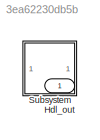
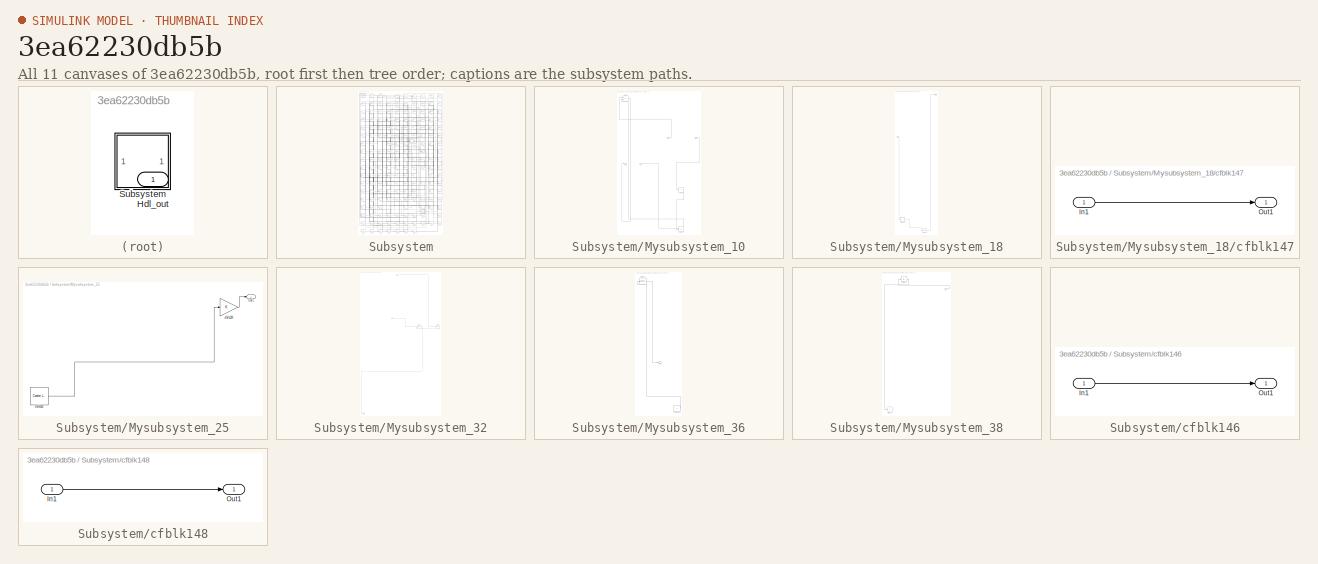
[diagram: thumbnail index - all 11 canvases of the model, root first then tree order]
MODEL slx_3ea62230db5b
KIND model
CONFIG AbsTol = auto
CONFIG EnableMultiTasking = off
CONFIG FixedStep = auto
CONFIG MaxStep = auto
CONFIG MinStep = auto
CONFIG RelTol = 1e-3
CONFIG SampleTimeConstraint = Unconstrained
CONFIG SolverName = VariableStepAuto
CONFIG StartTime = 0.0
CONFIG StopTime = 10.0
BLOCK [Outport] Hdl_out
  OutDataTypeStr = uint8
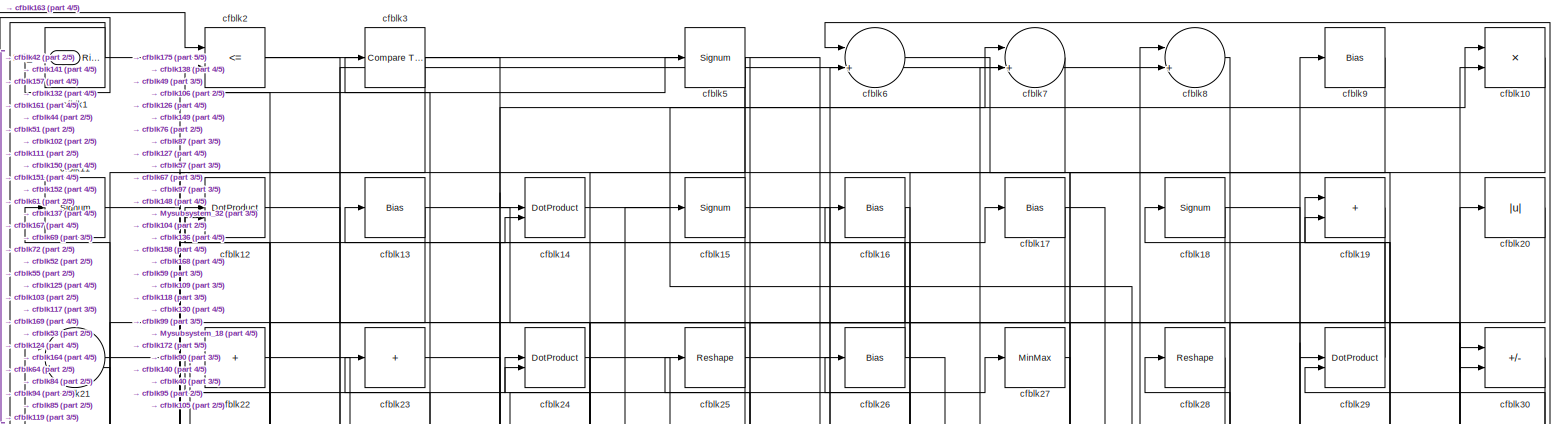
[diagram: Subsystem - part 1/5, full width, top band]
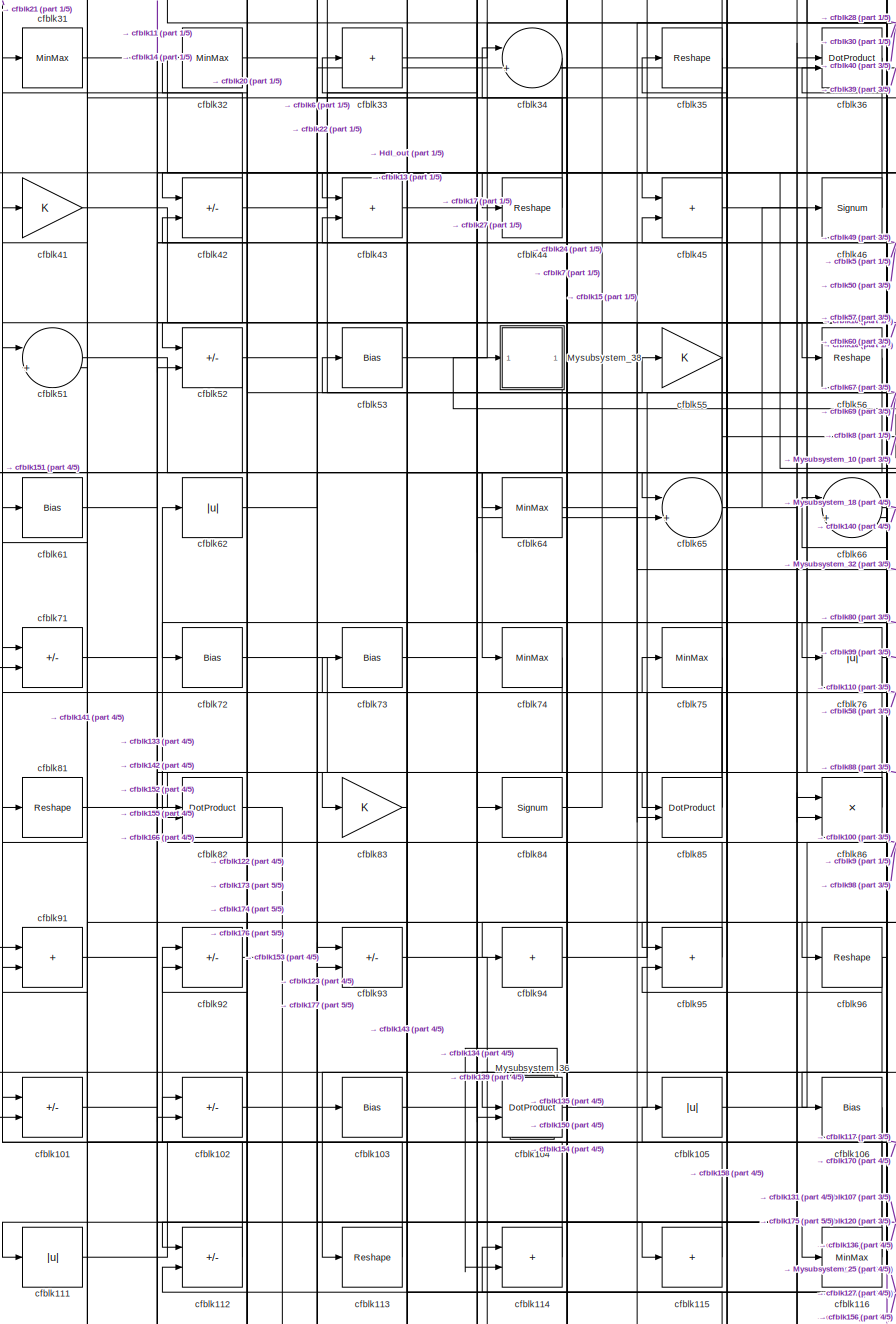
[diagram: Subsystem - part 2/5, middle left region]
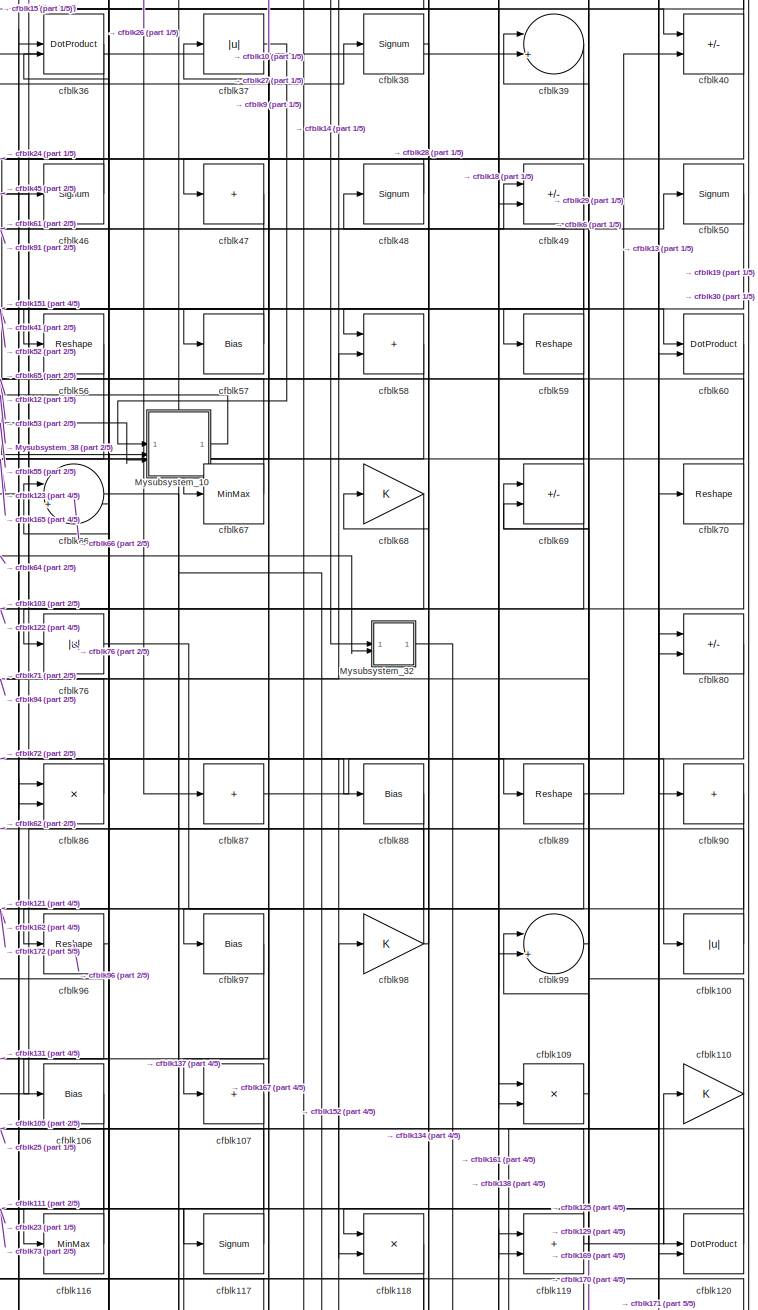
[diagram: Subsystem - part 3/5, middle right region]
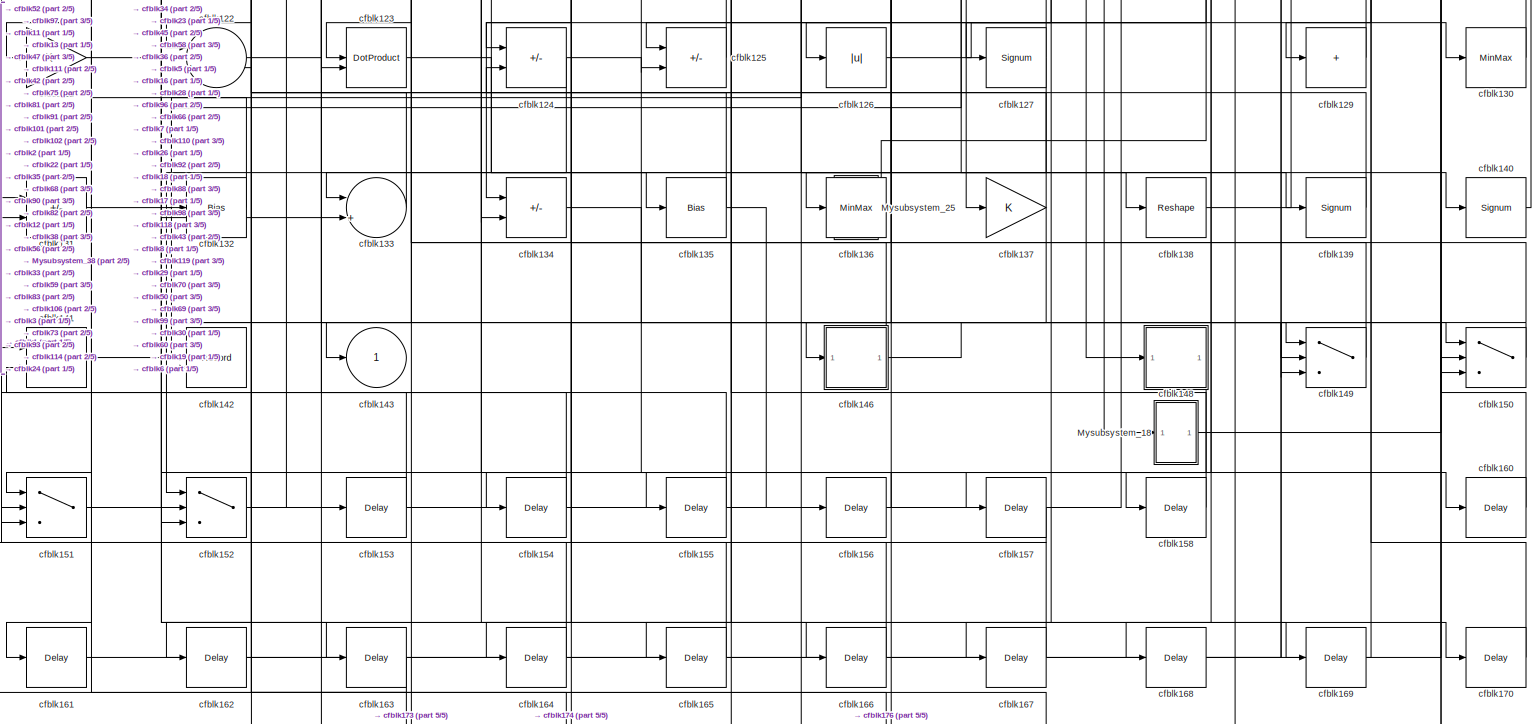
[diagram: Subsystem - part 4/5, full width, bottom band]
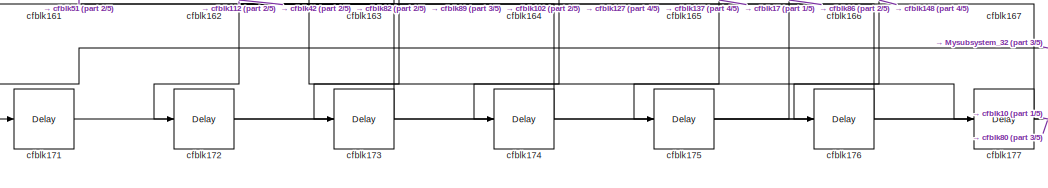
[diagram: Subsystem - part 5/5, bottom center region]
BLOCK [SubSystem] Subsystem
BLOCK [Outport] Subsystem/Hdl_out
  OutDataTypeStr = uint8
  Port = 2
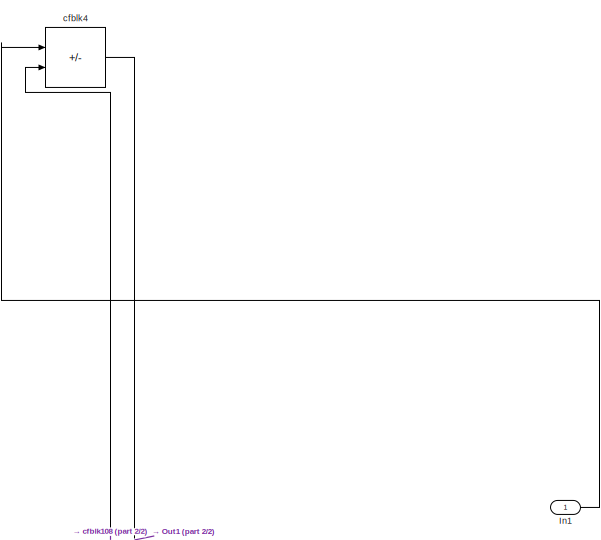
[diagram: Subsystem/Mysubsystem_10 - part 1/2, top center region]
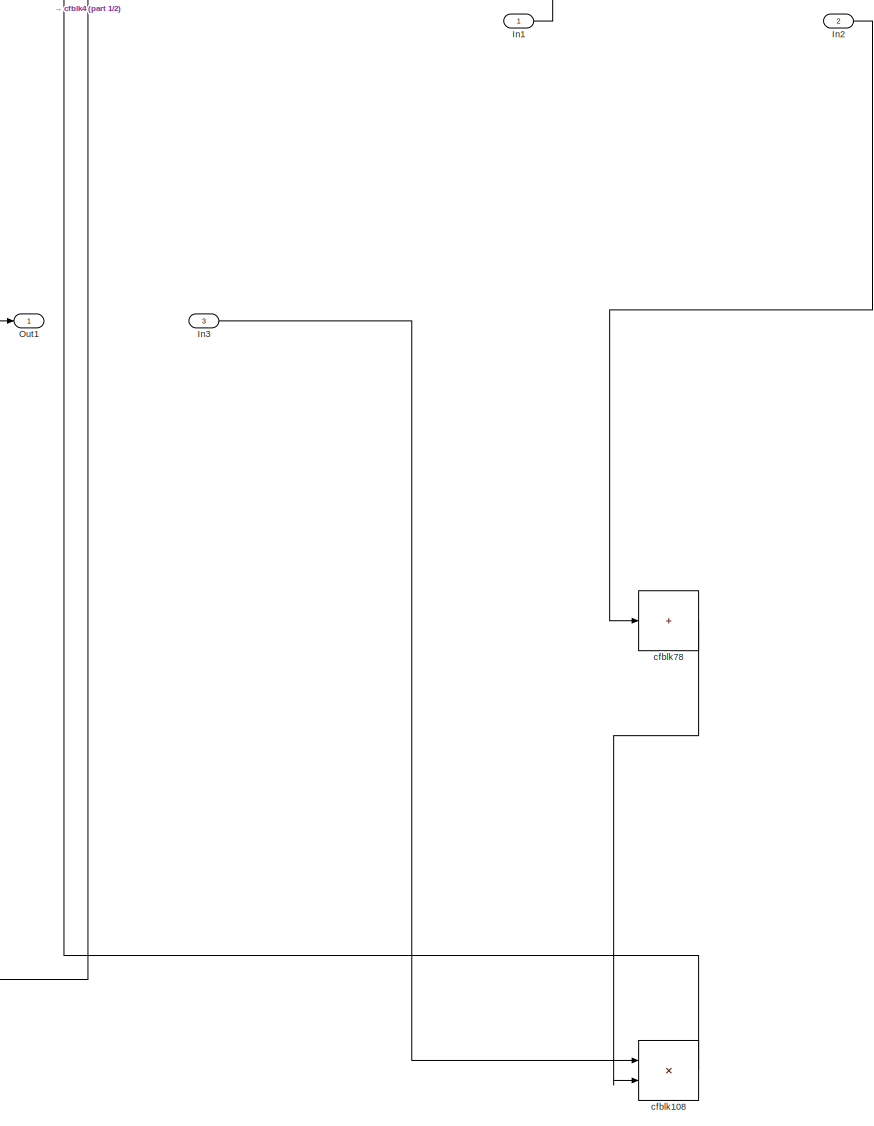
[diagram: Subsystem/Mysubsystem_10 - part 2/2, full width, middle band]
BLOCK [SubSystem] Subsystem/Mysubsystem_10
  RTWFcnName = Mysubsystem_10
  RTWFcnNameOpts = User specified
  RTWFileNameOpts = Use function name
  RTWSystemCode = Reusable function
  TreatAsAtomicUnit = on
BLOCK [Inport] Subsystem/Mysubsystem_10/In1
BLOCK [Inport] Subsystem/Mysubsystem_10/In2
  Port = 2
BLOCK [Inport] Subsystem/Mysubsystem_10/In3
  Port = 3
BLOCK [Outport] Subsystem/Mysubsystem_10/Out1
BLOCK [Product] Subsystem/Mysubsystem_10/cfblk108
  Inputs = */
  RndMeth = Zero
  SaturateOnIntegerOverflow = on
BLOCK [Sum] Subsystem/Mysubsystem_10/cfblk4
  IconShape = rectangular
  Inputs = +-
BLOCK [Sum] Subsystem/Mysubsystem_10/cfblk78
  IconShape = rectangular
  Inputs = +
BLOCK [SubSystem] Subsystem/Mysubsystem_18
  RTWFcnName = Mysubsystem_18
  RTWFcnNameOpts = User specified
  RTWFileNameOpts = Use function name
  RTWSystemCode = Reusable function
  TreatAsAtomicUnit = on
BLOCK [Inport] Subsystem/Mysubsystem_18/In1
BLOCK [Outport] Subsystem/Mysubsystem_18/Out1
BLOCK [SubSystem] Subsystem/Mysubsystem_18/cfblk147
  LibrarySourceBlock = hdlsllib/Ports &\nSubsystems/Subsystem
BLOCK [Inport] Subsystem/Mysubsystem_18/cfblk147/In1
BLOCK [Outport] Subsystem/Mysubsystem_18/cfblk147/Out1
BLOCK [Delay] Subsystem/Mysubsystem_18/cfblk159
  InputPortMap = u0
  SampleTime = 1
BLOCK [SubSystem] Subsystem/Mysubsystem_25
  RTWFcnName = Mysubsystem_25
  RTWFcnNameOpts = User specified
  RTWFileNameOpts = Use function name
  RTWSystemCode = Reusable function
  TreatAsAtomicUnit = on
BLOCK [Outport] Subsystem/Mysubsystem_25/Out1
BLOCK [Gain] Subsystem/Mysubsystem_25/cfblk128
BLOCK [Reference] Subsystem/Mysubsystem_25/cfblk144  REF=hdlsllib/Sources/Counter
Limited
  SourceBlock = hdlsllib/Sources/Counter\nLimited
  SourceType = Counter Limited
BLOCK [SubSystem] Subsystem/Mysubsystem_32
  RTWFcnName = Mysubsystem_32
  RTWFcnNameOpts = User specified
  RTWFileNameOpts = Use function name
  RTWSystemCode = Reusable function
  TreatAsAtomicUnit = on
BLOCK [Inport] Subsystem/Mysubsystem_32/In1
BLOCK [Inport] Subsystem/Mysubsystem_32/In2
  Port = 2
BLOCK [Outport] Subsystem/Mysubsystem_32/Out1
BLOCK [DotProduct] Subsystem/Mysubsystem_32/cfblk77
  OutDataTypeStr = Inherit: Inherit via internal rule
BLOCK [Bias] Subsystem/Mysubsystem_32/cfblk79
  Bias = 0.0
  SaturateOnIntegerOverflow = off
BLOCK [SubSystem] Subsystem/Mysubsystem_36
  RTWFcnName = Mysubsystem_36
  RTWFcnNameOpts = User specified
  RTWFileNameOpts = Use function name
  RTWSystemCode = Reusable function
  TreatAsAtomicUnit = on
BLOCK [Outport] Subsystem/Mysubsystem_36/Out1
BLOCK [Constant] Subsystem/Mysubsystem_36/cfblk145
  SampleTime = -1
BLOCK [MinMax] Subsystem/Mysubsystem_36/cfblk63
BLOCK [SubSystem] Subsystem/Mysubsystem_38
  RTWFcnName = Mysubsystem_38
  RTWFcnNameOpts = User specified
  RTWFileNameOpts = Use function name
  RTWSystemCode = Reusable function
  TreatAsAtomicUnit = on
BLOCK [Inport] Subsystem/Mysubsystem_38/In1
BLOCK [Outport] Subsystem/Mysubsystem_38/cfblk143
  VectorParamsAs1DForOutWhenUnconnected = off
BLOCK [Abs] Subsystem/Mysubsystem_38/cfblk54
  SaturateOnIntegerOverflow = off
BLOCK [Reference] Subsystem/cfblk1  REF=hdlsllib/Logic and Bit
Operations/Detect Rise
Positive
  SourceBlock = hdlsllib/Logic and Bit\nOperations/Detect Rise\nPositive
  SourceType = Detect Rise Positive
BLOCK [Product] Subsystem/cfblk10
  Inputs = */
  OutDataTypeStr = uint8
  RndMeth = Zero
  SaturateOnIntegerOverflow = on
BLOCK [Abs] Subsystem/cfblk100
  OutDataTypeStr = uint8
  SaturateOnIntegerOverflow = off
BLOCK [Sum] Subsystem/cfblk101
  IconShape = rectangular
  Inputs = +-
  OutDataTypeStr = uint8
BLOCK [Sum] Subsystem/cfblk102
  IconShape = rectangular
  Inputs = +-
  OutDataTypeStr = uint8
BLOCK [Bias] Subsystem/cfblk103
  Bias = 0.0
  SaturateOnIntegerOverflow = off
BLOCK [DotProduct] Subsystem/cfblk104
  OutDataTypeStr = uint8
BLOCK [Abs] Subsystem/cfblk105
  OutDataTypeStr = uint8
  SaturateOnIntegerOverflow = off
BLOCK [Bias] Subsystem/cfblk106
  Bias = 0.0
  SaturateOnIntegerOverflow = off
BLOCK [Sum] Subsystem/cfblk107
  IconShape = rectangular
  Inputs = +
  OutDataTypeStr = uint8
BLOCK [Product] Subsystem/cfblk109
  Inputs = */
  OutDataTypeStr = uint8
  RndMeth = Zero
  SaturateOnIntegerOverflow = on
BLOCK [Signum] Subsystem/cfblk11
BLOCK [Gain] Subsystem/cfblk110
  OutDataTypeStr = uint8
BLOCK [Abs] Subsystem/cfblk111
  OutDataTypeStr = uint8
  SaturateOnIntegerOverflow = off
BLOCK [Sum] Subsystem/cfblk112
  IconShape = rectangular
  Inputs = +-
  OutDataTypeStr = uint8
BLOCK [Reshape] Subsystem/cfblk113
BLOCK [Sum] Subsystem/cfblk114
  IconShape = rectangular
  OutDataTypeStr = uint8
BLOCK [Sum] Subsystem/cfblk115
  IconShape = rectangular
  Inputs = +
  OutDataTypeStr = uint8
BLOCK [MinMax] Subsystem/cfblk116
  OutDataTypeStr = uint8
BLOCK [Signum] Subsystem/cfblk117
BLOCK [Product] Subsystem/cfblk118
  Inputs = */
  OutDataTypeStr = uint8
  RndMeth = Zero
  SaturateOnIntegerOverflow = on
BLOCK [Sum] Subsystem/cfblk119
  IconShape = rectangular
  OutDataTypeStr = uint8
BLOCK [DotProduct] Subsystem/cfblk12
  OutDataTypeStr = uint8
BLOCK [DotProduct] Subsystem/cfblk120
  OutDataTypeStr = uint8
BLOCK [Gain] Subsystem/cfblk121
  OutDataTypeStr = uint8
BLOCK [Sum] Subsystem/cfblk122
  Inputs = |++
  OutDataTypeStr = uint8
BLOCK [DotProduct] Subsystem/cfblk123
  OutDataTypeStr = uint8
BLOCK [Sum] Subsystem/cfblk124
  IconShape = rectangular
  Inputs = +-
  OutDataTypeStr = uint8
BLOCK [Sum] Subsystem/cfblk125
  IconShape = rectangular
  Inputs = +-
  OutDataTypeStr = uint8
BLOCK [Abs] Subsystem/cfblk126
  OutDataTypeStr = uint8
  SaturateOnIntegerOverflow = off
BLOCK [Signum] Subsystem/cfblk127
BLOCK [Sum] Subsystem/cfblk129
  IconShape = rectangular
  Inputs = +
  OutDataTypeStr = uint8
BLOCK [Bias] Subsystem/cfblk13
  Bias = 0.0
  SaturateOnIntegerOverflow = off
BLOCK [MinMax] Subsystem/cfblk130
  OutDataTypeStr = uint8
BLOCK [Sum] Subsystem/cfblk131
  IconShape = rectangular
  Inputs = +-
  OutDataTypeStr = uint8
BLOCK [Bias] Subsystem/cfblk132
  Bias = 0.0
  SaturateOnIntegerOverflow = off
BLOCK [Sum] Subsystem/cfblk133
  Inputs = |++
  OutDataTypeStr = uint8
BLOCK [Sum] Subsystem/cfblk134
  IconShape = rectangular
  Inputs = +-
  OutDataTypeStr = uint8
BLOCK [Bias] Subsystem/cfblk135
  Bias = 0.0
  SaturateOnIntegerOverflow = off
BLOCK [MinMax] Subsystem/cfblk136
  OutDataTypeStr = uint8
BLOCK [Gain] Subsystem/cfblk137
  OutDataTypeStr = uint8
BLOCK [Reshape] Subsystem/cfblk138
BLOCK [Signum] Subsystem/cfblk139
BLOCK [DotProduct] Subsystem/cfblk14
  OutDataTypeStr = uint8
BLOCK [Signum] Subsystem/cfblk140
BLOCK [Sum] Subsystem/cfblk141
  IconShape = rectangular
  OutDataTypeStr = uint8
BLOCK [Record] Subsystem/cfblk142
  CompatibilityTag = XY
  FileSettingsInternal = {"entries":[{"content":{"excelSettings":{"content":{},"type":"Streamout.ExcelSettings"}},"type":"Streamout.FileSettingStorage","uuid":""}],"packageUris":["http:\/\/schema.mathworks.com\/mf0\/streamout_blocks\/R2020a"],"version":"1.0"}
  Layout = [1 1]
  SignalsInternal = {"entries":[{"content":{"signals":[{"content":{"blockPath":[],"dimensions":[1],"domain":"","lineColor":"#a2142f","plots":[1],"port":1,"signalID":20133,"signalName":"cfblk150"},"type":"RecordBlkView.Signal","uuid":""},{"content":{"blockPath":[],"dimensions":[1],"domain":"","lineColor":"#139fff","plots":[1],"port":2,"signalID":20136,"signalName":"cfblk75"},"type":"RecordBlkView.Signal","uuid":""}]},...<+143ch>
  VisualizationBindings = {"xyplotplugin":{"info":[{"series":[{"bindingParametersList":[{"parameter":"X-Axis","signalID":20133,"signalName":"cfblk150"},{"parameter":"Y-Axis","signalID":20136,"signalName":"cfblk75"}],"seriesID":42833}],"subplotID":1}]}}
  st = -1
BLOCK [Outport] Subsystem/cfblk143
  OutDataTypeStr = uint8
  VectorParamsAs1DForOutWhenUnconnected = off
BLOCK [SubSystem] Subsystem/cfblk146
  LibrarySourceBlock = hdlsllib/Ports &\nSubsystems/Subsystem
BLOCK [Inport] Subsystem/cfblk146/In1
BLOCK [Outport] Subsystem/cfblk146/Out1
BLOCK [SubSystem] Subsystem/cfblk148
  LibrarySourceBlock = hdlsllib/Ports &\nSubsystems/Subsystem
BLOCK [Inport] Subsystem/cfblk148/In1
BLOCK [Outport] Subsystem/cfblk148/Out1
BLOCK [Switch] Subsystem/cfblk149
  InputSameDT = off
  OutDataTypeStr = uint8
  SaturateOnIntegerOverflow = off
BLOCK [Signum] Subsystem/cfblk15
BLOCK [Switch] Subsystem/cfblk150
  InputSameDT = off
  OutDataTypeStr = uint8
  SaturateOnIntegerOverflow = off
BLOCK [Switch] Subsystem/cfblk151
  InputSameDT = off
  OutDataTypeStr = uint8
  SaturateOnIntegerOverflow = off
BLOCK [Switch] Subsystem/cfblk152
  InputSameDT = off
  OutDataTypeStr = uint8
  SaturateOnIntegerOverflow = off
BLOCK [Delay] Subsystem/cfblk153
  InputPortMap = u0
  SampleTime = 1
BLOCK [Delay] Subsystem/cfblk154
  InputPortMap = u0
  SampleTime = 1
BLOCK [Delay] Subsystem/cfblk155
  InputPortMap = u0
  SampleTime = 1
BLOCK [Delay] Subsystem/cfblk156
  InputPortMap = u0
  SampleTime = 1
BLOCK [Delay] Subsystem/cfblk157
  InputPortMap = u0
  SampleTime = 1
BLOCK [Delay] Subsystem/cfblk158
  InputPortMap = u0
  SampleTime = 1
BLOCK [Bias] Subsystem/cfblk16
  Bias = 0.0
  SaturateOnIntegerOverflow = off
BLOCK [Delay] Subsystem/cfblk160
  InputPortMap = u0
  SampleTime = 1
BLOCK [Delay] Subsystem/cfblk161
  InputPortMap = u0
  SampleTime = 1
BLOCK [Delay] Subsystem/cfblk162
  InputPortMap = u0
  SampleTime = 1
BLOCK [Delay] Subsystem/cfblk163
  InputPortMap = u0
  SampleTime = 1
BLOCK [Delay] Subsystem/cfblk164
  InputPortMap = u0
  SampleTime = 1
BLOCK [Delay] Subsystem/cfblk165
  InputPortMap = u0
  SampleTime = 1
BLOCK [Delay] Subsystem/cfblk166
  InputPortMap = u0
  SampleTime = 1
BLOCK [Delay] Subsystem/cfblk167
  InputPortMap = u0
  SampleTime = 1
BLOCK [Delay] Subsystem/cfblk168
  InputPortMap = u0
  SampleTime = 1
BLOCK [Delay] Subsystem/cfblk169
  InputPortMap = u0
  SampleTime = 1
BLOCK [Bias] Subsystem/cfblk17
  Bias = 0.0
  SaturateOnIntegerOverflow = off
BLOCK [Delay] Subsystem/cfblk170
  InputPortMap = u0
  SampleTime = 1
BLOCK [Delay] Subsystem/cfblk171
  InputPortMap = u0
  SampleTime = 1
BLOCK [Delay] Subsystem/cfblk172
  InputPortMap = u0
  SampleTime = 1
BLOCK [Delay] Subsystem/cfblk173
  InputPortMap = u0
  SampleTime = 1
BLOCK [Delay] Subsystem/cfblk174
  InputPortMap = u0
  SampleTime = 1
BLOCK [Delay] Subsystem/cfblk175
  InputPortMap = u0
  SampleTime = 1
BLOCK [Delay] Subsystem/cfblk176
  InputPortMap = u0
  SampleTime = 1
BLOCK [Delay] Subsystem/cfblk177
  InputPortMap = u0
  SampleTime = 1
BLOCK [Signum] Subsystem/cfblk18
BLOCK [Sum] Subsystem/cfblk19
  IconShape = rectangular
  OutDataTypeStr = uint8
BLOCK [RelationalOperator] Subsystem/cfblk2
  InputSameDT = off
  Operator = <=
  OutDataTypeStr = boolean
BLOCK [Abs] Subsystem/cfblk20
  OutDataTypeStr = uint8
  SaturateOnIntegerOverflow = off
BLOCK [Sum] Subsystem/cfblk21
  Inputs = |++
  OutDataTypeStr = uint8
BLOCK [Sum] Subsystem/cfblk22
  IconShape = rectangular
  Inputs = +
  OutDataTypeStr = uint8
BLOCK [Sum] Subsystem/cfblk23
  IconShape = rectangular
  Inputs = +
  OutDataTypeStr = uint8
BLOCK [DotProduct] Subsystem/cfblk24
  OutDataTypeStr = uint8
BLOCK [Reshape] Subsystem/cfblk25
BLOCK [Bias] Subsystem/cfblk26
  Bias = 0.0
  SaturateOnIntegerOverflow = off
BLOCK [MinMax] Subsystem/cfblk27
  OutDataTypeStr = uint8
BLOCK [Reshape] Subsystem/cfblk28
BLOCK [DotProduct] Subsystem/cfblk29
  OutDataTypeStr = uint8
BLOCK [Reference] Subsystem/cfblk3  REF=hdlsllib/Logic and Bit
Operations/Compare
To Constant
  SourceBlock = hdlsllib/Logic and Bit\nOperations/Compare\nTo Constant
  SourceType = Compare To Constant
BLOCK [Sum] Subsystem/cfblk30
  IconShape = rectangular
  Inputs = +-
  OutDataTypeStr = uint8
BLOCK [MinMax] Subsystem/cfblk31
  OutDataTypeStr = uint8
BLOCK [MinMax] Subsystem/cfblk32
  OutDataTypeStr = uint8
BLOCK [Sum] Subsystem/cfblk33
  IconShape = rectangular
  Inputs = +
  OutDataTypeStr = uint8
BLOCK [Sum] Subsystem/cfblk34
  Inputs = |++
  OutDataTypeStr = uint8
BLOCK [Reshape] Subsystem/cfblk35
BLOCK [DotProduct] Subsystem/cfblk36
  OutDataTypeStr = uint8
BLOCK [Abs] Subsystem/cfblk37
  OutDataTypeStr = uint8
  SaturateOnIntegerOverflow = off
BLOCK [Signum] Subsystem/cfblk38
BLOCK [Sum] Subsystem/cfblk39
  Inputs = |++
  OutDataTypeStr = uint8
BLOCK [Sum] Subsystem/cfblk40
  IconShape = rectangular
  Inputs = +-
  OutDataTypeStr = uint8
BLOCK [Gain] Subsystem/cfblk41
  OutDataTypeStr = uint8
BLOCK [Sum] Subsystem/cfblk42
  IconShape = rectangular
  Inputs = +-
  OutDataTypeStr = uint8
BLOCK [Sum] Subsystem/cfblk43
  IconShape = rectangular
  OutDataTypeStr = uint8
BLOCK [Reshape] Subsystem/cfblk44
BLOCK [Sum] Subsystem/cfblk45
  IconShape = rectangular
  OutDataTypeStr = uint8
BLOCK [Signum] Subsystem/cfblk46
BLOCK [Sum] Subsystem/cfblk47
  IconShape = rectangular
  Inputs = +
  OutDataTypeStr = uint8
BLOCK [Signum] Subsystem/cfblk48
BLOCK [Sum] Subsystem/cfblk49
  IconShape = rectangular
  Inputs = +-
  OutDataTypeStr = uint8
BLOCK [Signum] Subsystem/cfblk5
BLOCK [Signum] Subsystem/cfblk50
BLOCK [Sum] Subsystem/cfblk51
  Inputs = |++
  OutDataTypeStr = uint8
BLOCK [Sum] Subsystem/cfblk52
  IconShape = rectangular
  Inputs = +-
  OutDataTypeStr = uint8
BLOCK [Bias] Subsystem/cfblk53
  Bias = 0.0
  SaturateOnIntegerOverflow = off
BLOCK [Gain] Subsystem/cfblk55
  OutDataTypeStr = uint8
BLOCK [Reshape] Subsystem/cfblk56
BLOCK [Bias] Subsystem/cfblk57
  Bias = 0.0
  SaturateOnIntegerOverflow = off
BLOCK [Sum] Subsystem/cfblk58
  IconShape = rectangular
  OutDataTypeStr = uint8
BLOCK [Reshape] Subsystem/cfblk59
BLOCK [Sum] Subsystem/cfblk6
  Inputs = |++
  OutDataTypeStr = uint8
BLOCK [DotProduct] Subsystem/cfblk60
  OutDataTypeStr = uint8
BLOCK [Bias] Subsystem/cfblk61
  Bias = 0.0
  SaturateOnIntegerOverflow = off
BLOCK [Abs] Subsystem/cfblk62
  OutDataTypeStr = uint8
  SaturateOnIntegerOverflow = off
BLOCK [MinMax] Subsystem/cfblk64
  OutDataTypeStr = uint8
BLOCK [Sum] Subsystem/cfblk65
  Inputs = |++
  OutDataTypeStr = uint8
BLOCK [Sum] Subsystem/cfblk66
  Inputs = |++
  OutDataTypeStr = uint8
BLOCK [MinMax] Subsystem/cfblk67
  OutDataTypeStr = uint8
BLOCK [Gain] Subsystem/cfblk68
  OutDataTypeStr = uint8
BLOCK [Sum] Subsystem/cfblk69
  IconShape = rectangular
  Inputs = +-
  OutDataTypeStr = uint8
BLOCK [Sum] Subsystem/cfblk7
  Inputs = |++
  OutDataTypeStr = uint8
BLOCK [Reshape] Subsystem/cfblk70
BLOCK [Sum] Subsystem/cfblk71
  IconShape = rectangular
  Inputs = +-
  OutDataTypeStr = uint8
BLOCK [Bias] Subsystem/cfblk72
  Bias = 0.0
  SaturateOnIntegerOverflow = off
BLOCK [Bias] Subsystem/cfblk73
  Bias = 0.0
  SaturateOnIntegerOverflow = off
BLOCK [MinMax] Subsystem/cfblk74
  OutDataTypeStr = uint8
BLOCK [MinMax] Subsystem/cfblk75
  OutDataTypeStr = uint8
BLOCK [Abs] Subsystem/cfblk76
  OutDataTypeStr = uint8
  SaturateOnIntegerOverflow = off
BLOCK [Sum] Subsystem/cfblk8
  Inputs = |++
  OutDataTypeStr = uint8
BLOCK [Sum] Subsystem/cfblk80
  IconShape = rectangular
  Inputs = +-
  OutDataTypeStr = uint8
BLOCK [Reshape] Subsystem/cfblk81
BLOCK [DotProduct] Subsystem/cfblk82
  OutDataTypeStr = uint8
BLOCK [Gain] Subsystem/cfblk83
  OutDataTypeStr = uint8
BLOCK [Signum] Subsystem/cfblk84
BLOCK [DotProduct] Subsystem/cfblk85
  OutDataTypeStr = uint8
BLOCK [Product] Subsystem/cfblk86
  Inputs = */
  OutDataTypeStr = uint8
  RndMeth = Zero
  SaturateOnIntegerOverflow = on
BLOCK [Sum] Subsystem/cfblk87
  IconShape = rectangular
  Inputs = +
  OutDataTypeStr = uint8
BLOCK [Bias] Subsystem/cfblk88
  Bias = 0.0
  SaturateOnIntegerOverflow = off
BLOCK [Reshape] Subsystem/cfblk89
BLOCK [Bias] Subsystem/cfblk9
  Bias = 0.0
  SaturateOnIntegerOverflow = off
BLOCK [Sum] Subsystem/cfblk90
  IconShape = rectangular
  Inputs = +
  OutDataTypeStr = uint8
BLOCK [Sum] Subsystem/cfblk91
  IconShape = rectangular
  OutDataTypeStr = uint8
BLOCK [Sum] Subsystem/cfblk92
  IconShape = rectangular
  Inputs = +-
  OutDataTypeStr = uint8
BLOCK [Sum] Subsystem/cfblk93
  IconShape = rectangular
  Inputs = +-
  OutDataTypeStr = uint8
BLOCK [Sum] Subsystem/cfblk94
  IconShape = rectangular
  Inputs = +
  OutDataTypeStr = uint8
BLOCK [Sum] Subsystem/cfblk95
  IconShape = rectangular
  OutDataTypeStr = uint8
BLOCK [Reshape] Subsystem/cfblk96
BLOCK [Bias] Subsystem/cfblk97
  Bias = 0.0
  SaturateOnIntegerOverflow = off
BLOCK [Gain] Subsystem/cfblk98
  OutDataTypeStr = uint8
BLOCK [Sum] Subsystem/cfblk99
  Inputs = |++
  OutDataTypeStr = uint8
LINE Subsystem/Mysubsystem_10/In1:1 -> Subsystem/Mysubsystem_10/cfblk4:1
LINE Subsystem/Mysubsystem_10/In2:1 -> Subsystem/Mysubsystem_10/cfblk78:1
LINE Subsystem/Mysubsystem_10/In3:1 -> Subsystem/Mysubsystem_10/cfblk108:1
LINE Subsystem/Mysubsystem_10/cfblk108:1 -> Subsystem/Mysubsystem_10/cfblk4:2
LINE Subsystem/Mysubsystem_10/cfblk4:1 -> Subsystem/Mysubsystem_10/Out1:1
LINE Subsystem/Mysubsystem_10/cfblk78:1 -> Subsystem/Mysubsystem_10/cfblk108:2
LINE Subsystem/Mysubsystem_10:1 -> Subsystem/Mysubsystem_38:1
LINE Subsystem/Mysubsystem_18/In1:1 -> Subsystem/Mysubsystem_18/cfblk147:1
LINE Subsystem/Mysubsystem_18/cfblk147/In1:1 -> Subsystem/Mysubsystem_18/cfblk147/Out1:1
LINE Subsystem/Mysubsystem_18/cfblk147:1 -> Subsystem/Mysubsystem_18/cfblk159:1
LINE Subsystem/Mysubsystem_18/cfblk159:1 -> Subsystem/Mysubsystem_18/Out1:1
LINE Subsystem/Mysubsystem_18:1 -> Subsystem/cfblk30:1
LINE Subsystem/Mysubsystem_25/cfblk128:1 -> Subsystem/Mysubsystem_25/Out1:1
LINE Subsystem/Mysubsystem_25/cfblk144:1 -> Subsystem/Mysubsystem_25/cfblk128:1
NET Subsystem/Mysubsystem_25:1 -> Subsystem/cfblk125:1, Subsystem/cfblk43:2
LINE Subsystem/Mysubsystem_32/In1:1 -> Subsystem/Mysubsystem_32/cfblk79:1
LINE Subsystem/Mysubsystem_32/In2:1 -> Subsystem/Mysubsystem_32/cfblk77:1
LINE Subsystem/Mysubsystem_32/cfblk77:1 -> Subsystem/Mysubsystem_32/Out1:1
LINE Subsystem/Mysubsystem_32/cfblk79:1 -> Subsystem/Mysubsystem_32/cfblk77:2
LINE Subsystem/Mysubsystem_32:1 -> Subsystem/cfblk171:1
LINE Subsystem/Mysubsystem_36/cfblk145:1 -> Subsystem/Mysubsystem_36/cfblk63:1
LINE Subsystem/Mysubsystem_36/cfblk63:1 -> Subsystem/Mysubsystem_36/Out1:1
LINE Subsystem/Mysubsystem_36:1 -> Subsystem/cfblk114:2
LINE Subsystem/Mysubsystem_38/In1:1 -> Subsystem/Mysubsystem_38/cfblk54:1
LINE Subsystem/Mysubsystem_38/cfblk54:1 -> Subsystem/Mysubsystem_38/cfblk143:1
LINE Subsystem/Mysubsystem_38:1 -> Subsystem/cfblk143:1
LINE Subsystem/cfblk100:1 -> Subsystem/cfblk62:1
LINE Subsystem/cfblk101:1 -> Subsystem/cfblk155:1
NET Subsystem/cfblk102:1 -> Subsystem/cfblk113:1, Subsystem/cfblk177:1
LINE Subsystem/cfblk103:1 -> Subsystem/cfblk14:1
LINE Subsystem/cfblk104:1 -> Subsystem/cfblk8:1
LINE Subsystem/cfblk105:1 -> Subsystem/cfblk9:1
LINE Subsystem/cfblk106:1 -> Subsystem/cfblk134:2
LINE Subsystem/cfblk107:1 -> Subsystem/cfblk111:1
LINE Subsystem/cfblk109:1 -> Subsystem/cfblk39:1
NET Subsystem/cfblk10:1 -> Subsystem/cfblk67:1, Subsystem/cfblk76:1
NET Subsystem/cfblk110:1 -> Subsystem/cfblk137:1, Subsystem/cfblk71:1
NET Subsystem/cfblk111:1 -> Subsystem/cfblk14:2, Subsystem/cfblk170:1, Subsystem/cfblk20:1
LINE Subsystem/cfblk112:1 -> Subsystem/cfblk61:1
LINE Subsystem/cfblk113:1 -> Subsystem/cfblk31:1
LINE Subsystem/cfblk114:1 -> Subsystem/cfblk41:1
LINE Subsystem/cfblk115:1 -> Subsystem/cfblk92:1
LINE Subsystem/cfblk116:1 -> Subsystem/cfblk81:1
LINE Subsystem/cfblk117:1 -> Subsystem/cfblk105:1
LINE Subsystem/cfblk118:1 -> Subsystem/cfblk134:1
NET Subsystem/cfblk119:1 -> Subsystem/cfblk110:1, Subsystem/cfblk25:1
NET Subsystem/cfblk11:1 -> Subsystem/cfblk102:2, Subsystem/cfblk150:3
LINE Subsystem/cfblk120:1 -> Subsystem/cfblk69:1
LINE Subsystem/cfblk121:1 -> Subsystem/cfblk163:1
LINE Subsystem/cfblk122:1 -> Subsystem/cfblk38:1
LINE Subsystem/cfblk123:1 -> Subsystem/cfblk135:1
NET Subsystem/cfblk124:1 -> Subsystem/cfblk149:1, Subsystem/cfblk149:3, Subsystem/cfblk152:1
LINE Subsystem/cfblk125:1 -> Subsystem/cfblk23:1
LINE Subsystem/cfblk126:1 -> Subsystem/cfblk130:1
NET Subsystem/cfblk127:1 -> Subsystem/cfblk173:1, Subsystem/cfblk26:1, Subsystem/cfblk92:2
LINE Subsystem/cfblk129:1 -> Subsystem/cfblk34:2
LINE Subsystem/cfblk12:1 -> Subsystem/cfblk150:1
LINE Subsystem/cfblk130:1 -> Subsystem/cfblk19:1
NET Subsystem/cfblk131:1 -> Subsystem/cfblk132:1, Subsystem/cfblk36:1
LINE Subsystem/cfblk132:1 -> Subsystem/cfblk11:1
LINE Subsystem/cfblk133:1 -> Subsystem/cfblk101:1
LINE Subsystem/cfblk134:1 -> Subsystem/cfblk160:1
NET Subsystem/cfblk135:1 -> Subsystem/cfblk156:1, Subsystem/cfblk34:1
LINE Subsystem/cfblk136:1 -> Subsystem/cfblk66:1
NET Subsystem/cfblk137:1 -> Subsystem/cfblk174:1, Subsystem/cfblk2:2
LINE Subsystem/cfblk138:1 -> Subsystem/cfblk70:1
LINE Subsystem/cfblk139:1 -> Subsystem/cfblk102:1
NET Subsystem/cfblk13:1 -> Subsystem/cfblk10:1, Subsystem/cfblk161:1, Subsystem/cfblk90:1
LINE Subsystem/cfblk140:1 -> Subsystem/cfblk6:1
NET Subsystem/cfblk141:1 -> Subsystem/cfblk7:2, Subsystem/cfblk91:2
LINE Subsystem/cfblk146/In1:1 -> Subsystem/cfblk146/Out1:1
NET Subsystem/cfblk146:1 -> Subsystem/cfblk149:2, Subsystem/cfblk73:1
LINE Subsystem/cfblk148/In1:1 -> Subsystem/cfblk148/Out1:1
LINE Subsystem/cfblk148:1 -> Subsystem/cfblk176:1
NET Subsystem/cfblk149:1 -> Subsystem/cfblk16:1, Subsystem/cfblk33:1
NET Subsystem/cfblk14:1 -> Subsystem/Mysubsystem_32:1, Subsystem/cfblk7:1
NET Subsystem/cfblk150:1 -> Subsystem/cfblk114:1, Subsystem/cfblk142:1
LINE Subsystem/cfblk151:1 -> Subsystem/cfblk24:2
NET Subsystem/cfblk152:1 -> Subsystem/cfblk22:1, Subsystem/cfblk98:1
LINE Subsystem/cfblk153:1 -> Subsystem/cfblk141:2
LINE Subsystem/cfblk154:1 -> Subsystem/cfblk93:1
LINE Subsystem/cfblk155:1 -> Subsystem/cfblk91:1
LINE Subsystem/cfblk156:1 -> Subsystem/cfblk36:2
LINE Subsystem/cfblk157:1 -> Subsystem/cfblk1:1
LINE Subsystem/cfblk158:1 -> Subsystem/cfblk45:2
LINE Subsystem/cfblk15:1 -> Subsystem/cfblk118:2
LINE Subsystem/cfblk160:1 -> Subsystem/cfblk150:2
LINE Subsystem/cfblk161:1 -> Subsystem/cfblk119:1
LINE Subsystem/cfblk162:1 -> Subsystem/cfblk60:2
LINE Subsystem/cfblk163:1 -> Subsystem/cfblk2:1
LINE Subsystem/cfblk164:1 -> Subsystem/cfblk151:2
LINE Subsystem/cfblk165:1 -> Subsystem/cfblk131:1
LINE Subsystem/cfblk166:1 -> Subsystem/cfblk124:2
LINE Subsystem/cfblk167:1 -> Subsystem/cfblk12:2
LINE Subsystem/cfblk168:1 -> Subsystem/cfblk29:1
LINE Subsystem/cfblk169:1 -> Subsystem/cfblk99:1
NET Subsystem/cfblk16:1 -> Subsystem/cfblk106:1, Subsystem/cfblk126:1, Subsystem/cfblk94:1
LINE Subsystem/cfblk170:1 -> Subsystem/cfblk69:2
LINE Subsystem/cfblk171:1 -> Subsystem/cfblk80:1
LINE Subsystem/cfblk172:1 -> Subsystem/cfblk10:2
LINE Subsystem/cfblk173:1 -> Subsystem/cfblk112:2
LINE Subsystem/cfblk174:1 -> Subsystem/cfblk82:2
LINE Subsystem/cfblk175:1 -> Subsystem/cfblk86:1
LINE Subsystem/cfblk176:1 -> Subsystem/cfblk42:2
LINE Subsystem/cfblk177:1 -> Subsystem/cfblk51:2
NET Subsystem/cfblk17:1 -> Subsystem/cfblk148:1, Subsystem/cfblk175:1
NET Subsystem/cfblk18:1 -> Subsystem/cfblk109:1, Subsystem/cfblk124:1, Subsystem/cfblk127:1
LINE Subsystem/cfblk19:1 -> Subsystem/cfblk168:1
LINE Subsystem/cfblk1:1 -> Subsystem/cfblk141:1
LINE Subsystem/cfblk20:1 -> Subsystem/cfblk72:1
LINE Subsystem/cfblk21:1 -> Subsystem/cfblk84:1
LINE Subsystem/cfblk22:1 -> Subsystem/cfblk55:1
LINE Subsystem/cfblk23:1 -> Subsystem/cfblk117:1
NET Subsystem/cfblk24:1 -> Subsystem/cfblk109:2, Subsystem/cfblk164:1
NET Subsystem/cfblk25:1 -> Subsystem/cfblk49:2, Subsystem/cfblk8:2
NET Subsystem/cfblk26:1 -> Subsystem/cfblk3:1, Subsystem/cfblk87:1
LINE Subsystem/cfblk27:1 -> Subsystem/cfblk57:1
NET Subsystem/cfblk28:1 -> Subsystem/cfblk104:2, Subsystem/cfblk136:1
LINE Subsystem/cfblk29:1 -> Subsystem/cfblk18:1
LINE Subsystem/cfblk2:1 -> Subsystem/cfblk30:2
NET Subsystem/cfblk30:1 -> Subsystem/cfblk59:1, Subsystem/cfblk85:1, Subsystem/cfblk85:2
LINE Subsystem/cfblk31:1 -> Subsystem/cfblk45:1
LINE Subsystem/cfblk32:1 -> Subsystem/cfblk56:1
LINE Subsystem/cfblk33:1 -> Subsystem/cfblk40:1
LINE Subsystem/cfblk34:1 -> Subsystem/cfblk101:2
NET Subsystem/cfblk35:1 -> Subsystem/cfblk122:2, Subsystem/cfblk42:1
NET Subsystem/cfblk36:1 -> Subsystem/cfblk43:1, Subsystem/cfblk82:1
LINE Subsystem/cfblk37:1 -> Subsystem/Mysubsystem_10:1
LINE Subsystem/cfblk38:1 -> Subsystem/cfblk58:1
LINE Subsystem/cfblk39:1 -> Subsystem/Mysubsystem_10:2
NET Subsystem/cfblk3:1 -> Subsystem/cfblk152:3, Subsystem/cfblk169:1
NET Subsystem/cfblk40:1 -> Subsystem/cfblk19:2, Subsystem/cfblk52:2
LINE Subsystem/cfblk41:1 -> Subsystem/cfblk60:1
NET Subsystem/cfblk42:1 -> Subsystem/cfblk152:2, Subsystem/cfblk17:1, Subsystem/cfblk21:1
LINE Subsystem/cfblk43:1 -> Subsystem/cfblk65:2
LINE Subsystem/cfblk44:1 -> Subsystem/cfblk21:2
LINE Subsystem/cfblk45:1 -> Subsystem/cfblk80:2
LINE Subsystem/cfblk46:1 -> Subsystem/cfblk44:1
LINE Subsystem/cfblk47:1 -> Subsystem/cfblk151:1
LINE Subsystem/cfblk48:1 -> Subsystem/cfblk47:1
LINE Subsystem/cfblk49:1 -> Subsystem/cfblk65:1
NET Subsystem/cfblk50:1 -> Subsystem/cfblk125:2, Subsystem/cfblk129:1
LINE Subsystem/cfblk51:1 -> Subsystem/cfblk74:1
NET Subsystem/cfblk52:1 -> Subsystem/cfblk151:3, Subsystem/cfblk6:2
LINE Subsystem/cfblk53:1 -> Subsystem/cfblk27:1
NET Subsystem/cfblk55:1 -> Subsystem/Mysubsystem_10:3, Subsystem/cfblk71:2
LINE Subsystem/cfblk56:1 -> Subsystem/cfblk123:2
LINE Subsystem/cfblk57:1 -> Subsystem/cfblk52:1
LINE Subsystem/cfblk58:1 -> Subsystem/cfblk165:1
NET Subsystem/cfblk59:1 -> Subsystem/cfblk123:1, Subsystem/cfblk28:1
NET Subsystem/cfblk5:1 -> Subsystem/cfblk138:1, Subsystem/cfblk51:1, Subsystem/cfblk95:1
LINE Subsystem/cfblk60:1 -> Subsystem/cfblk119:2
NET Subsystem/cfblk61:1 -> Subsystem/cfblk49:1, Subsystem/cfblk5:1
LINE Subsystem/cfblk62:1 -> Subsystem/cfblk39:2
LINE Subsystem/cfblk64:1 -> Subsystem/Mysubsystem_32:2
NET Subsystem/cfblk65:1 -> Subsystem/cfblk46:1, Subsystem/cfblk86:2
NET Subsystem/cfblk66:1 -> Subsystem/Mysubsystem_18:1, Subsystem/cfblk140:1
LINE Subsystem/cfblk67:1 -> Subsystem/cfblk53:1
LINE Subsystem/cfblk68:1 -> Subsystem/cfblk122:1
NET Subsystem/cfblk69:1 -> Subsystem/cfblk103:1, Subsystem/cfblk12:1
LINE Subsystem/cfblk6:1 -> Subsystem/cfblk118:1
NET Subsystem/cfblk70:1 -> Subsystem/cfblk120:2, Subsystem/cfblk37:1
NET Subsystem/cfblk71:1 -> Subsystem/cfblk115:1, Subsystem/cfblk88:1
LINE Subsystem/cfblk72:1 -> Subsystem/cfblk100:1
NET Subsystem/cfblk73:1 -> Subsystem/cfblk120:1, Subsystem/cfblk157:1
LINE Subsystem/cfblk74:1 -> Subsystem/cfblk93:2
NET Subsystem/cfblk75:1 -> Subsystem/cfblk104:1, Subsystem/cfblk142:2
LINE Subsystem/cfblk76:1 -> Subsystem/cfblk99:2
LINE Subsystem/cfblk7:1 -> Subsystem/cfblk64:1
LINE Subsystem/cfblk80:1 -> Subsystem/cfblk96:1
NET Subsystem/cfblk81:1 -> Subsystem/cfblk166:1, Subsystem/cfblk83:1
NET Subsystem/cfblk82:1 -> Subsystem/cfblk112:1, Subsystem/cfblk153:1
LINE Subsystem/cfblk83:1 -> Subsystem/cfblk133:1
NET Subsystem/cfblk84:1 -> Subsystem/cfblk15:1, Subsystem/cfblk24:1
NET Subsystem/cfblk85:1 -> Subsystem/Hdl_out:1, Subsystem/cfblk13:1
LINE Subsystem/cfblk86:1 -> Subsystem/cfblk35:1
LINE Subsystem/cfblk87:1 -> Subsystem/cfblk89:1
LINE Subsystem/cfblk88:1 -> Subsystem/cfblk167:1
NET Subsystem/cfblk89:1 -> Subsystem/cfblk107:1, Subsystem/cfblk172:1, Subsystem/cfblk40:2
LINE Subsystem/cfblk8:1 -> Subsystem/cfblk158:1
NET Subsystem/cfblk90:1 -> Subsystem/cfblk121:1, Subsystem/cfblk162:1
NET Subsystem/cfblk91:1 -> Subsystem/cfblk133:2, Subsystem/cfblk50:1
NET Subsystem/cfblk92:1 -> Subsystem/cfblk116:1, Subsystem/cfblk75:1
LINE Subsystem/cfblk93:1 -> Subsystem/cfblk139:1
LINE Subsystem/cfblk94:1 -> Subsystem/cfblk58:2
LINE Subsystem/cfblk95:1 -> Subsystem/cfblk32:1
NET Subsystem/cfblk96:1 -> Subsystem/cfblk146:1, Subsystem/cfblk154:1, Subsystem/cfblk95:2
LINE Subsystem/cfblk97:1 -> Subsystem/cfblk131:2
NET Subsystem/cfblk98:1 -> Subsystem/cfblk48:1, Subsystem/cfblk66:2, Subsystem/cfblk68:1
LINE Subsystem/cfblk99:1 -> Subsystem/cfblk29:2
LINE Subsystem/cfblk9:1 -> Subsystem/cfblk97:1
LINE Subsystem:1 -> Hdl_out:1
note: NET lines group one-source signal fan-out (src -> all destinations, sorted); 1:1 wires keep LINE
